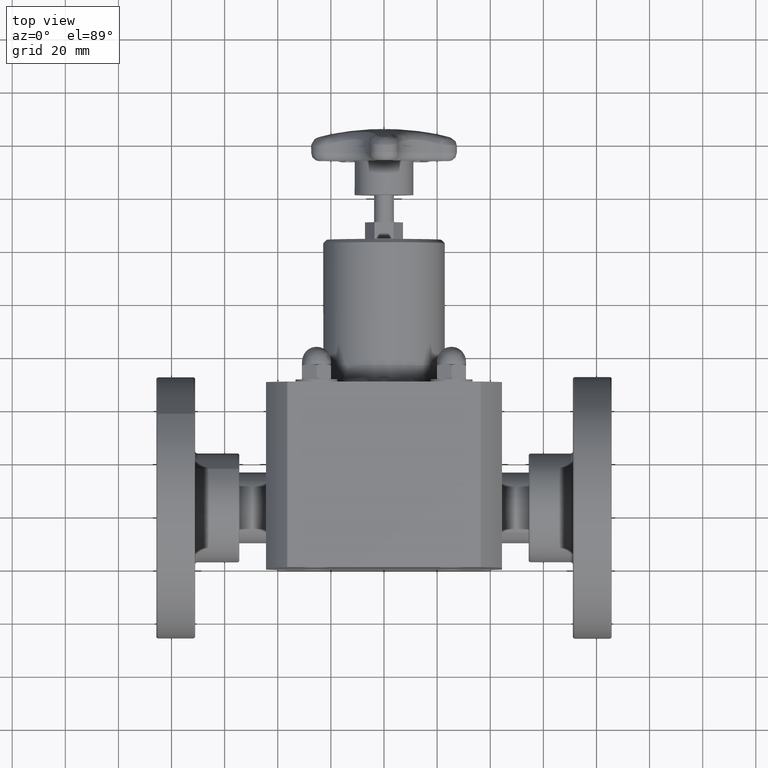
[diagram: clean part render]
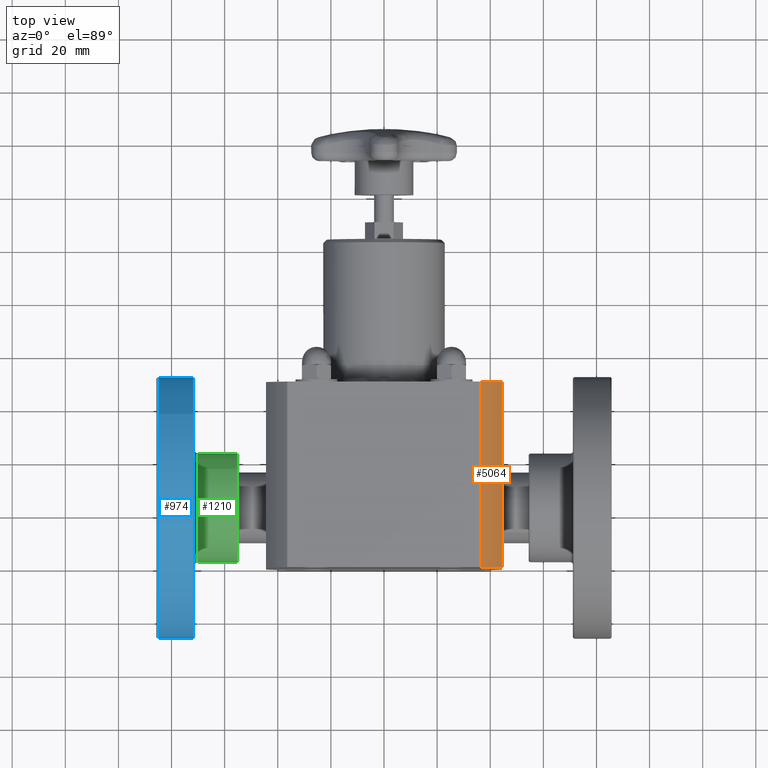
[diagram: same view with three faces highlighted in distinct colors, each labeled with its STEP entity id]
A machine part, top view with three faces highlighted in distinct colors.
Their STEP definitions:

[orange] entity #5064 — the highlighted cylindrical surface (partial cylindrical patch) has radius 50.4825 mm, axis along (-0, 1, 0).
#4581=CARTESIAN_POINT('',(1.435106703349965,2.750000000000000,1.375000000000000));
#4582=VERTEX_POINT('',#4581);
#4589=CARTESIAN_POINT('',(1.750000000000000,2.750000000000000,0.942155109310565));
#4590=VERTEX_POINT('',#4589);
#4591=CARTESIAN_POINT('',(1.748383E-016,2.750000000000000,3.496765E-016));
#4592=DIRECTION('',(0.0,-1.0,0.0));
#4593=DIRECTION('',(1.0,0.0,0.0));
#4594=AXIS2_PLACEMENT_3D('',#4591,#4592,#4593);
#4595=CIRCLE('',#4594,1.987500000000001);
#4596=EDGE_CURVE('',#4590,#4582,#4595,.T.);
#4831=CARTESIAN_POINT('',(1.750000000000000,1.011657E-044,0.942155109310564));
#4832=VERTEX_POINT('',#4831);
#4833=CARTESIAN_POINT('',(1.750000000000000,1.011657E-044,0.942155109310564));
#4834=DIRECTION('',(0.0,1.0,0.0));
#4835=VECTOR('',#4834,2.750000000000000);
#4836=LINE('',#4833,#4835);
#4837=EDGE_CURVE('',#4832,#4590,#4836,.T.);
#5040=CARTESIAN_POINT('',(0.0,0.0,0.0));
#5041=DIRECTION('',(-5.780896E-045,1.0,0.0));
#5042=DIRECTION('',(-0.722066265836460,-4.174190E-045,-0.691823899371069));
#5043=AXIS2_PLACEMENT_3D('',#5040,#5041,#5042);
#5044=CYLINDRICAL_SURFACE('',#5043,1.987500000000000);
#5045=CARTESIAN_POINT('',(1.435106703349963,8.296202E-045,1.375000000000000));
#5046=VERTEX_POINT('',#5045);
#5047=CARTESIAN_POINT('',(1.435106703349963,8.296202E-045,1.375000000000000));
#5048=DIRECTION('',(0.0,1.0,0.0));
#5049=VECTOR('',#5048,2.750000000000000);
#5050=LINE('',#5047,#5049);
#5051=EDGE_CURVE('',#5046,#4582,#5050,.T.);
#5052=ORIENTED_EDGE('',*,*,#5051,.F.);
#5053=CARTESIAN_POINT('',(0.0,0.0,0.0));
#5054=DIRECTION('',(3.014042E-045,-1.0,2.887804E-045));
#5055=DIRECTION('',(-0.722066265836460,-4.174190E-045,-0.691823899371069));
#5056=AXIS2_PLACEMENT_3D('',#5053,#5054,#5055);
#5057=CIRCLE('',#5056,1.987500000000000);
#5058=EDGE_CURVE('',#4832,#5046,#5057,.T.);
#5059=ORIENTED_EDGE('',*,*,#5058,.F.);
#5060=ORIENTED_EDGE('',*,*,#4837,.T.);
#5061=ORIENTED_EDGE('',*,*,#4596,.T.);
#5062=EDGE_LOOP('',(#5052,#5059,#5060,#5061));
#5063=FACE_OUTER_BOUND('',#5062,.T.);
#5064=ADVANCED_FACE('',(#5063),#5044,.T.);

[blue] entity #974 — the highlighted cylindrical surface (bore or boss wall) has radius 49.276 mm, axis along (1, 0, 0).
#943=CARTESIAN_POINT('',(-3.345000000000003,2.271787155501901,1.371787155501897));
#944=VERTEX_POINT('',#943);
#945=CARTESIAN_POINT('',(-3.344999999999999,0.899999999999998,-4.959334E-015));
#946=DIRECTION('',(-1.0,-1.536917E-015,-1.536917E-015));
#947=DIRECTION('',(2.173530E-015,-0.707106781186548,-0.707106781186547));
#948=AXIS2_PLACEMENT_3D('',#945,#946,#947);
#949=CIRCLE('',#948,1.940000000000000);
#950=EDGE_CURVE('',#944,#944,#949,.T.);
#955=CARTESIAN_POINT('',(-3.087499999999999,0.899999999999998,-4.396942E-015));
#956=DIRECTION('',(1.0,8.897910E-016,2.184044E-015));
#957=DIRECTION('',(-2.173530E-015,0.707106781186548,0.707106781186547));
#958=AXIS2_PLACEMENT_3D('',#955,#956,#957);
#959=CYLINDRICAL_SURFACE('',#958,1.940000000000000);
#960=CARTESIAN_POINT('',(-2.830000000000003,2.271787155501901,1.371787155501898));
#961=VERTEX_POINT('',#960);
#962=CARTESIAN_POINT('',(-2.829999999999999,0.899999999999998,-3.834551E-015));
#963=DIRECTION('',(1.0,1.536917E-015,1.536917E-015));
#964=DIRECTION('',(2.173530E-015,-0.707106781186548,-0.707106781186547));
#965=AXIS2_PLACEMENT_3D('',#962,#963,#964);
#966=CIRCLE('',#965,1.940000000000000);
#967=EDGE_CURVE('',#961,#961,#966,.T.);
#968=ORIENTED_EDGE('',*,*,#967,.F.);
#969=EDGE_LOOP('',(#968));
#970=FACE_OUTER_BOUND('',#969,.T.);
#971=ORIENTED_EDGE('',*,*,#950,.F.);
#972=EDGE_LOOP('',(#971));
#973=FACE_BOUND('',#972,.T.);
#974=ADVANCED_FACE('',(#970,#973),#959,.T.);

[green] entity #1210 — the highlighted cylindrical surface (bore or boss wall) has radius 20.5232 mm, axis along (1, 0, 0).
#1179=CARTESIAN_POINT('',(-2.770000000000001,1.471342279198729,0.571342279198727));
#1180=VERTEX_POINT('',#1179);
#1181=CARTESIAN_POINT('',(-2.769999999999999,0.899999999999998,-3.703508E-015));
#1182=DIRECTION('',(-1.0,-1.536917E-015,-1.536917E-015));
#1183=DIRECTION('',(2.173530E-015,-0.707106781186548,-0.707106781186547));
#1184=AXIS2_PLACEMENT_3D('',#1181,#1182,#1183);
#1185=CIRCLE('',#1184,0.808000000000000);
#1186=EDGE_CURVE('',#1180,#1180,#1185,.T.);
#1191=CARTESIAN_POINT('',(-2.472499999999999,0.899999999999999,-3.053755E-015));
#1192=DIRECTION('',(1.0,8.897910E-016,2.184044E-015));
#1193=DIRECTION('',(-2.173530E-015,0.707106781186547,0.707106781186547));
#1194=AXIS2_PLACEMENT_3D('',#1191,#1192,#1193);
#1195=CYLINDRICAL_SURFACE('',#1194,0.808000000000000);
#1196=CARTESIAN_POINT('',(-2.175000000000000,1.471342279198730,0.571342279198728));
#1197=VERTEX_POINT('',#1196);
#1198=CARTESIAN_POINT('',(-2.174999999999999,0.899999999999999,-2.404002E-015));
#1199=DIRECTION('',(1.0,1.536917E-015,1.536917E-015));
#1200=DIRECTION('',(2.173530E-015,-0.707106781186548,-0.707106781186547));
#1201=AXIS2_PLACEMENT_3D('',#1198,#1199,#1200);
#1202=CIRCLE('',#1201,0.808000000000000);
#1203=EDGE_CURVE('',#1197,#1197,#1202,.T.);
#1204=ORIENTED_EDGE('',*,*,#1203,.F.);
#1205=EDGE_LOOP('',(#1204));
#1206=FACE_OUTER_BOUND('',#1205,.T.);
#1207=ORIENTED_EDGE('',*,*,#1186,.F.);
#1208=EDGE_LOOP('',(#1207));
#1209=FACE_BOUND('',#1208,.T.);
#1210=ADVANCED_FACE('',(#1206,#1209),#1195,.T.);